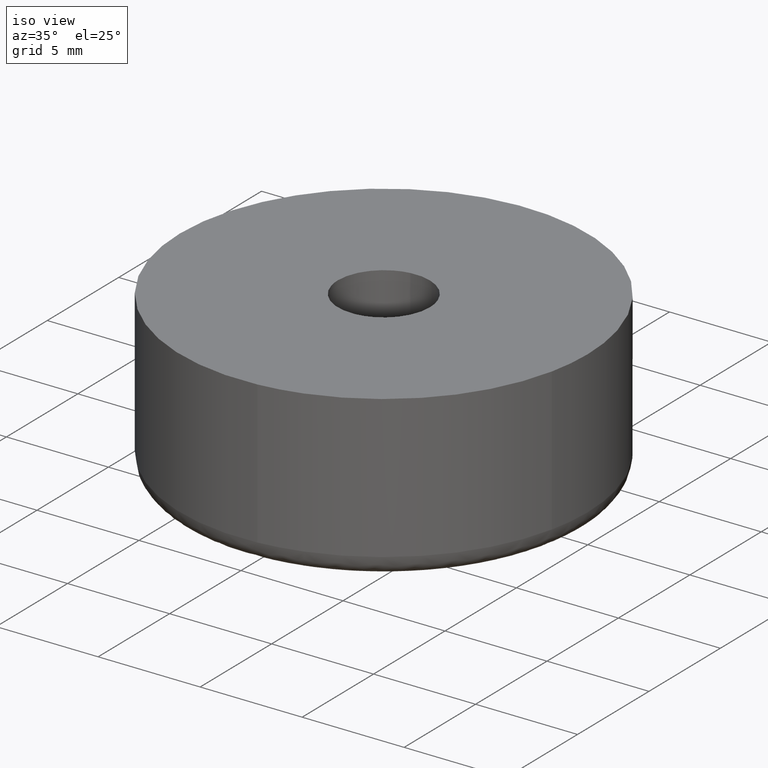
[diagram: clean part render]
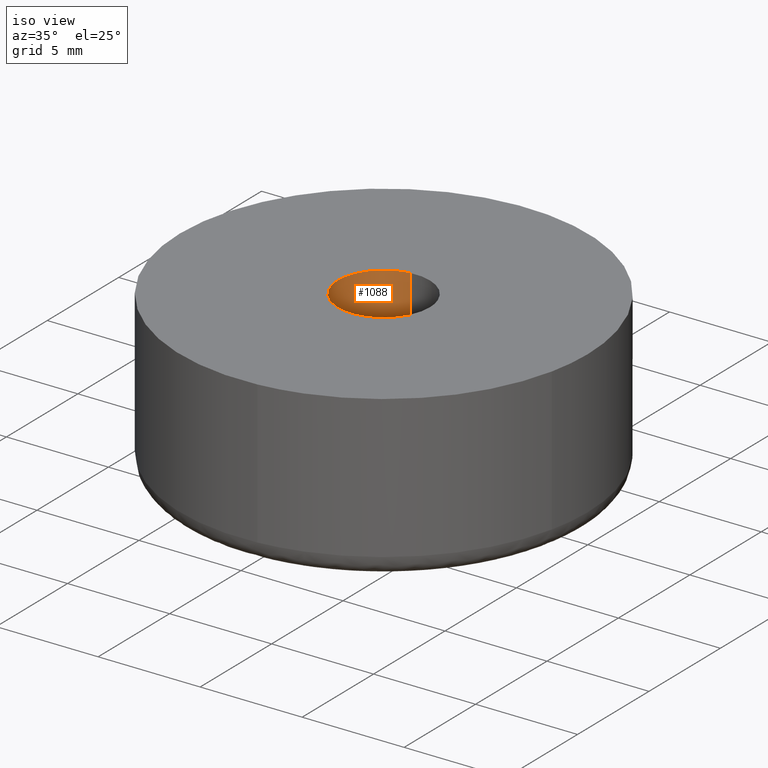
[diagram: same view with one face highlighted and labeled with its STEP entity id]
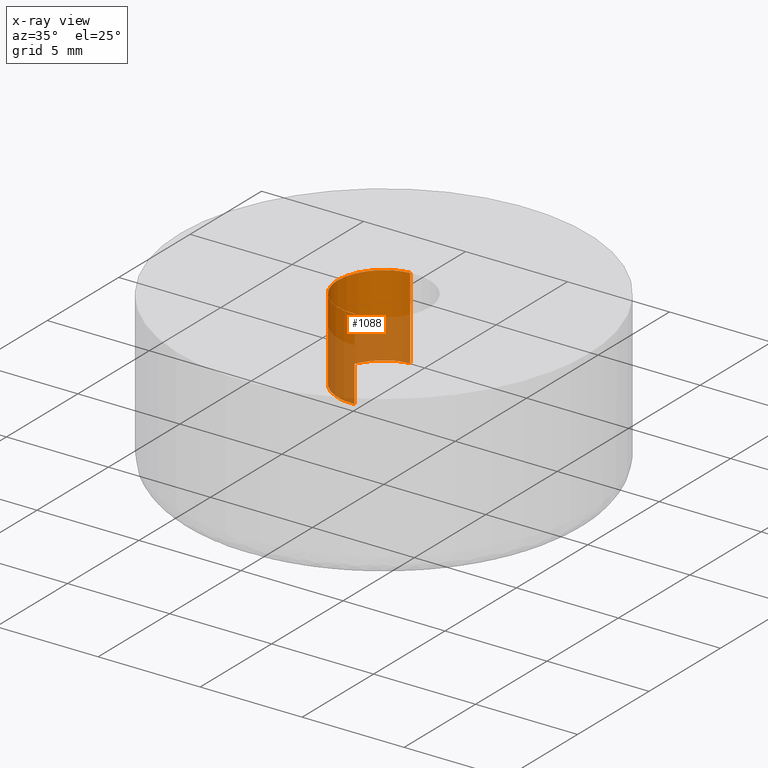
[diagram: x-ray of the same camera — body ghosted, the highlighted face saturated]
A machine part, iso view. The second image highlights one B-rep face of the part: STEP entity #1088.
The next image is the same camera in x-ray: the body ghosted, the highlighted face saturated — about 50% of this face is hidden behind the body in this view.
In plain terms, the highlighted face is a freeform B-spline surface patch.
Its self-contained STEP definition (entity closure, byte-faithful):
#921=CARTESIAN_POINT('',(-0.265572897743913,2.234271925251401,7.999999999999956));
#922=VERTEX_POINT('',#921);
#940=CARTESIAN_POINT('',(-0.265572947441810,2.234271919344237,4.0));
#941=VERTEX_POINT('',#940);
#942=CARTESIAN_POINT('',(-0.265572897743913,2.234271925251401,7.999999999999956));
#943=CARTESIAN_POINT('',(-0.265572947441810,2.234271919344237,4.0));
#944=QUASI_UNIFORM_CURVE('',1,(#942,#943),.UNSPECIFIED.,.F.,.U.);
#945=EDGE_CURVE('',#922,#941,#944,.T.);
#964=CARTESIAN_POINT('',(0.137359213972935,-2.245803296448007,4.0));
#965=VERTEX_POINT('',#964);
#979=CARTESIAN_POINT('',(0.137359213972935,-2.245803296448007,8.0));
#980=VERTEX_POINT('',#979);
#981=CARTESIAN_POINT('',(0.137359213972935,-2.245803296448007,8.0));
#982=CARTESIAN_POINT('',(0.137359213972935,-2.245803296448007,4.0));
#983=QUASI_UNIFORM_CURVE('',1,(#981,#982),.UNSPECIFIED.,.F.,.U.);
#984=EDGE_CURVE('',#980,#965,#983,.T.);
#1002=CARTESIAN_POINT('',(0.168306818032630,-2.243910459896337,8.100000000000003));
#1003=CARTESIAN_POINT('',(0.152877304180712,-2.244854169391168,8.100000000000003));
#1004=CARTESIAN_POINT('',(-2.108444082495772,-2.383162510402629,8.100000000000000));
#1005=CARTESIAN_POINT('',(-2.245803296449200,-0.137359213953428,8.100000000000000));
#1006=CARTESIAN_POINT('',(-2.375518942648186,1.983472854388877,8.100000000000000));
#1007=CARTESIAN_POINT('',(-0.249778641043662,2.236149312083834,8.100000000000001));
#1008=CARTESIAN_POINT('',(-0.234065164929763,2.238017096911330,8.100000000000001));
#1009=CARTESIAN_POINT('',(0.168306818032630,-2.243910459896337,3.897500000000001));
#1010=CARTESIAN_POINT('',(0.152877304180712,-2.244854169391168,3.897500000000001));
#1011=CARTESIAN_POINT('',(-2.108444082495772,-2.383162510402629,3.897500000000000));
#1012=CARTESIAN_POINT('',(-2.245803296449200,-0.137359213953428,3.897500000000000));
#1013=CARTESIAN_POINT('',(-2.375518942648186,1.983472854388877,3.897499999999999));
#1014=CARTESIAN_POINT('',(-0.249778641043662,2.236149312083834,3.897500000000000));
#1015=CARTESIAN_POINT('',(-0.234065164929763,2.238017096911330,3.897500000000001));
#1023=(BOUNDED_SURFACE()B_SPLINE_SURFACE(2,1,((#1002,#1009),(#1003,#1010),(#1004,#1011),(#1005,#1012),(#1006,#1013),(#1007,#1014),(#1008,#1015)),.UNSPECIFIED.,.F.,.F.,.U.)B_SPLINE_SURFACE_WITH_KNOTS((3,1,2,1,3),(2,2),(0.0,0.036533659224329,3.764455720582183,7.343260899485723,7.379799322007459),(0.0,4.202500000000001),.UNSPECIFIED.)GEOMETRIC_REPRESENTATION_ITEM()RATIONAL_B_SPLINE_SURFACE(((1.005740710706462,1.005740710706462),(1.002870355353231,1.002870355353231),(0.707106781186548,0.707106781186548),(1.0,1.0),(0.718822509939086,0.718822509939086),(0.980146872020889,0.980146872020889),(0.982787943246651,0.982787943246651)))REPRESENTATION_ITEM('')SURFACE());
#1024=CARTESIAN_POINT('',(-2.250000000000000,0.0,8.0));
#1025=VERTEX_POINT('',#1024);
#1026=CARTESIAN_POINT('',(-2.250000000000000,0.0,8.0));
#1027=CARTESIAN_POINT('',(-2.250000000000000,1.998396403591361,8.0));
#1028=CARTESIAN_POINT('',(-0.265572897743913,2.234271925251401,7.999999999999956));
#1036=(BOUNDED_CURVE()B_SPLINE_CURVE(2,(#1026,#1027,#1028),.UNSPECIFIED.,.F.,.U.)B_SPLINE_CURVE_WITH_KNOTS((3,3),(0.0,0.229562785932030),.UNSPECIFIED.)CURVE()GEOMETRIC_REPRESENTATION_ITEM()RATIONAL_B_SPLINE_CURVE((1.0,0.731050466834337,0.956027366537701))REPRESENTATION_ITEM(''));
#1037=EDGE_CURVE('',#1025,#922,#1036,.T.);
#1038=ORIENTED_EDGE('',*,*,#1037,.F.);
#1039=CARTESIAN_POINT('',(0.137359213972935,-2.245803296448008,8.0));
#1040=CARTESIAN_POINT('',(0.068743717441387,-2.250000000000000,8.0));
#1041=CARTESIAN_POINT('',(0.0,-2.250000000000000,8.0));
#1042=CARTESIAN_POINT('',(-2.250000000000000,-2.250000000000000,8.0));
#1043=CARTESIAN_POINT('',(-2.250000000000000,0.0,8.0));
#1051=(BOUNDED_CURVE()B_SPLINE_CURVE(2,(#1039,#1040,#1041,#1042,#1043),.UNSPECIFIED.,.F.,.U.)B_SPLINE_CURVE_WITH_KNOTS((3,2,3),(0.739332962238971,0.750000000000000,1.0),.UNSPECIFIED.)CURVE()GEOMETRIC_REPRESENTATION_ITEM()RATIONAL_B_SPLINE_CURVE((0.976072041666778,0.987502787899870,1.0,0.707106781186547,1.0))REPRESENTATION_ITEM(''));
#1052=EDGE_CURVE('',#980,#1025,#1051,.T.);
#1053=ORIENTED_EDGE('',*,*,#1052,.F.);
#1054=ORIENTED_EDGE('',*,*,#984,.T.);
#1055=CARTESIAN_POINT('',(-2.250000000000000,0.0,4.0));
#1056=VERTEX_POINT('',#1055);
#1057=CARTESIAN_POINT('',(0.137359213972935,-2.245803296448008,4.000000000000001));
#1058=CARTESIAN_POINT('',(0.068743717441387,-2.250000000000000,4.000000000000001));
#1059=CARTESIAN_POINT('',(0.0,-2.250000000000000,4.0));
#1060=CARTESIAN_POINT('',(-2.250000000000000,-2.250000000000000,4.0));
#1061=CARTESIAN_POINT('',(-2.250000000000000,0.0,4.0));
#1069=(BOUNDED_CURVE()B_SPLINE_CURVE(2,(#1057,#1058,#1059,#1060,#1061),.UNSPECIFIED.,.F.,.U.)B_SPLINE_CURVE_WITH_KNOTS((3,2,3),(0.739332962238971,0.750000000000000,1.0),.UNSPECIFIED.)CURVE()GEOMETRIC_REPRESENTATION_ITEM()RATIONAL_B_SPLINE_CURVE((0.976072041666778,0.987502787899870,1.0,0.707106781186547,1.0))REPRESENTATION_ITEM(''));
#1070=EDGE_CURVE('',#965,#1056,#1069,.T.);
#1071=ORIENTED_EDGE('',*,*,#1070,.T.);
#1072=CARTESIAN_POINT('',(-2.250000000000000,0.0,4.0));
#1073=CARTESIAN_POINT('',(-2.250000000000000,1.998396358827245,4.000000000000000));
#1074=CARTESIAN_POINT('',(-0.265572947441810,2.234271919344238,4.0));
#1082=(BOUNDED_CURVE()B_SPLINE_CURVE(2,(#1072,#1073,#1074),.UNSPECIFIED.,.F.,.U.)B_SPLINE_CURVE_WITH_KNOTS((3,3),(0.0,0.229562782172814),.UNSPECIFIED.)CURVE()GEOMETRIC_REPRESENTATION_ITEM()RATIONAL_B_SPLINE_CURVE((1.0,0.731050471238532,0.956027359169463))REPRESENTATION_ITEM(''));
#1083=EDGE_CURVE('',#1056,#941,#1082,.T.);
#1084=ORIENTED_EDGE('',*,*,#1083,.T.);
#1085=ORIENTED_EDGE('',*,*,#945,.F.);
#1086=EDGE_LOOP('',(#1038,#1053,#1054,#1071,#1084,#1085));
#1087=FACE_OUTER_BOUND('',#1086,.T.);
#1088=ADVANCED_FACE('',(#1087),#1023,.F.);